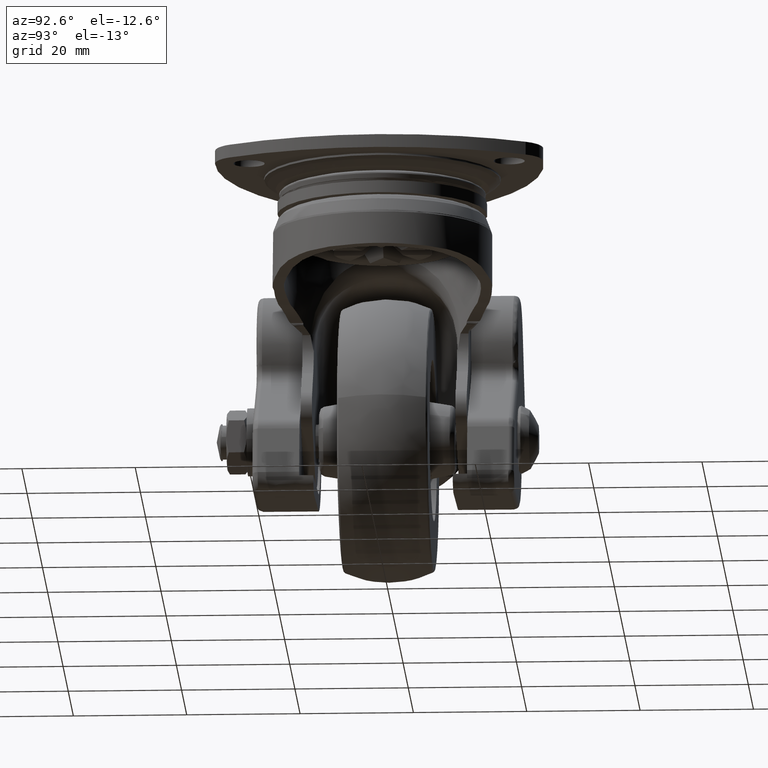
[diagram: clean part render]
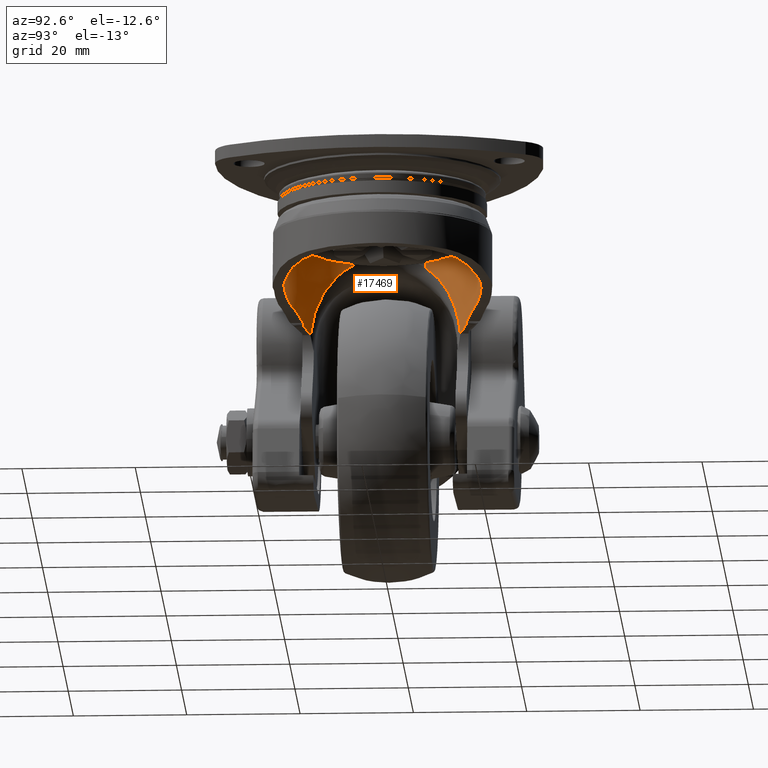
[diagram: same view with one face highlighted and labeled with its STEP entity id]
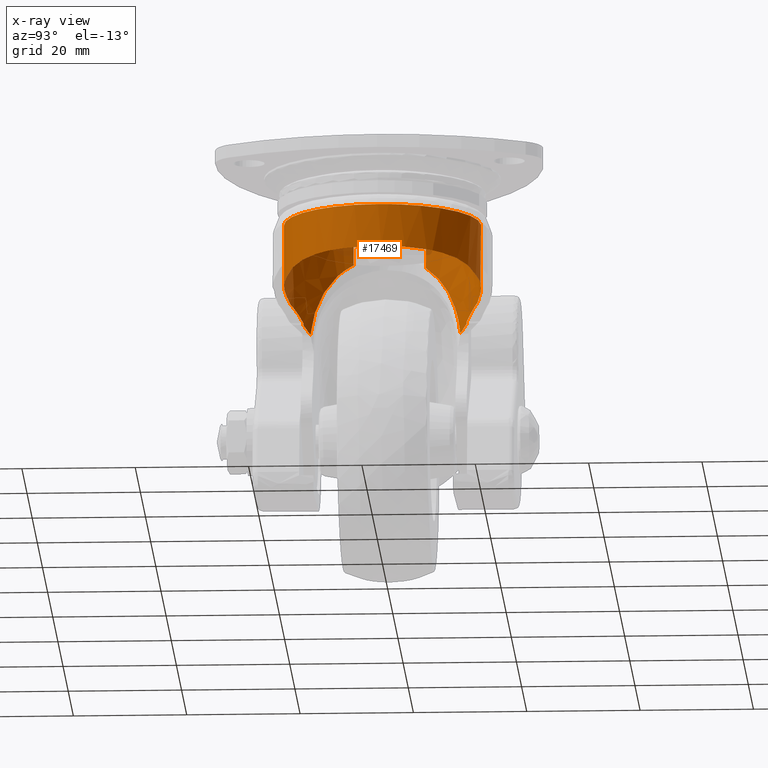
[diagram: x-ray of the same camera — body ghosted, the highlighted face saturated]
A machine part, auxiliary view. The second image highlights one B-rep face of the part: STEP entity #17469.
The next image is the same camera in x-ray: the body ghosted, the highlighted face saturated — about 1% of this face is hidden behind the body in this view.
In plain terms, the highlighted face is a freeform B-spline surface patch.
Its self-contained STEP definition (entity closure, byte-faithful):
#16979=CARTESIAN_POINT('',(-16.369466174454921,-5.829406467271696,-28.340582292806577));
#16980=CARTESIAN_POINT('',(-13.840908912767114,-12.929809020731485,-28.340582292806580));
#16981=CARTESIAN_POINT('',(-6.928847710513217,-15.935258767958830,-28.340582292806580));
#16982=CARTESIAN_POINT('',(9.006411057445614,-22.864106478472049,-28.340582292806584));
#16983=CARTESIAN_POINT('',(15.935258767958830,-6.928847710513217,-28.340582292806580));
#16984=CARTESIAN_POINT('',(22.864106478472049,9.006411057445614,-28.340582292806584));
#16985=CARTESIAN_POINT('',(6.928847710513217,15.935258767958830,-28.340582292806580));
#16986=CARTESIAN_POINT('',(-9.006411057445614,22.864106478472049,-28.340582292806584));
#16987=CARTESIAN_POINT('',(-15.935258767958830,6.928847710513217,-28.340582292806580));
#16988=CARTESIAN_POINT('',(-16.369466174454921,-5.829406467271696,-10.335087853159026));
#16989=CARTESIAN_POINT('',(-13.840908912767114,-12.929809020731485,-10.335087853159024));
#16990=CARTESIAN_POINT('',(-6.928847710513217,-15.935258767958830,-10.335087853159020));
#16991=CARTESIAN_POINT('',(9.006411057445614,-22.864106478472049,-10.335087853159024));
#16992=CARTESIAN_POINT('',(15.935258767958830,-6.928847710513217,-10.335087853159020));
#16993=CARTESIAN_POINT('',(22.864106478472049,9.006411057445614,-10.335087853159024));
#16994=CARTESIAN_POINT('',(6.928847710513217,15.935258767958830,-10.335087853159020));
#16995=CARTESIAN_POINT('',(-9.006411057445614,22.864106478472049,-10.335087853159026));
#16996=CARTESIAN_POINT('',(-15.935258767958830,6.928847710513217,-10.335087853159029));
#17004=(BOUNDED_SURFACE()B_SPLINE_SURFACE(2,1,((#16979,#16988),(#16980,#16989),(#16981,#16990),(#16982,#16991),(#16983,#16992),(#16984,#16993),(#16985,#16994),(#16986,#16995),(#16987,#16996)),.UNSPECIFIED.,.F.,.F.,.U.)B_SPLINE_SURFACE_WITH_KNOTS((3,2,2,2,3),(2,2),(0.0,14.970937031100160,43.761200552446610,72.551464073793056,101.341727595139500),(0.0,18.005494439647560),.UNSPECIFIED.)GEOMETRIC_REPRESENTATION_ITEM()RATIONAL_B_SPLINE_SURFACE(((0.853787705168325,0.853787705168325),(0.847695526217005,0.847695526217005),(1.0,1.0),(0.707106781186548,0.707106781186548),(1.0,1.0),(0.707106781186548,0.707106781186548),(1.0,1.0),(0.707106781186548,0.707106781186548),(1.0,1.0)))REPRESENTATION_ITEM('')SURFACE());
#17005=CARTESIAN_POINT('',(-11.261278477554541,-13.233480632405840,-27.912135072350949));
#17006=VERTEX_POINT('',#17005);
#17007=CARTESIAN_POINT('',(-16.369466341763310,-5.829406526846057,-14.219856318878399));
#17008=VERTEX_POINT('',#17007);
#17009=CARTESIAN_POINT('',(-11.261278477554541,-13.233480632405840,-27.912135072350949));
#17010=CARTESIAN_POINT('',(-11.315166881773930,-13.187623284404779,-27.430767966451189));
#17011=CARTESIAN_POINT('',(-11.384089228616000,-13.128436100265571,-26.955259438005580));
#17012=CARTESIAN_POINT('',(-11.548155476626871,-12.984353164154911,-26.014947296582051));
#17013=CARTESIAN_POINT('',(-11.643306839953370,-12.899448443883291,-25.550147056945161));
#17014=CARTESIAN_POINT('',(-11.856633268476880,-12.703645613073260,-24.630622749485411));
#17015=CARTESIAN_POINT('',(-11.974813752248741,-12.592744596585449,-24.175900417564549));
#17016=CARTESIAN_POINT('',(-12.167282773296630,-12.405910973466890,-23.501126004629999));
#17017=CARTESIAN_POINT('',(-12.233986782569390,-12.340199876890271,-23.277383985123471));
#17018=CARTESIAN_POINT('',(-12.372102891131400,-12.201722650877761,-22.832476613030980));
#17019=CARTESIAN_POINT('',(-12.443207287819320,-12.129264301083071,-22.612296909980252));
#17020=CARTESIAN_POINT('',(-12.662034981338721,-11.902037754609379,-21.958424105540320));
#17021=CARTESIAN_POINT('',(-12.815263941135621,-11.737443458026570,-21.531382221325309));
#17022=CARTESIAN_POINT('',(-13.133358086140809,-11.380398683374020,-20.694603886106631));
#17023=CARTESIAN_POINT('',(-13.298229001870739,-11.187951970507889,-20.284867946485829));
#17024=CARTESIAN_POINT('',(-13.636783974328811,-10.772710277273600,-19.482741538836450));
#17025=CARTESIAN_POINT('',(-13.810473754863860,-10.549924796451560,-19.090348952068450));
#17026=CARTESIAN_POINT('',(-14.031359390860111,-10.250263398494690,-18.611035540038170));
#17027=CARTESIAN_POINT('',(-14.075773246287939,-10.189201268469800,-18.515631254936380));
#17028=CARTESIAN_POINT('',(-14.164639504271600,-10.065296949634931,-18.326580040437129));
#17029=CARTESIAN_POINT('',(-14.298002375582779,-9.876768786829416,-18.045619626065349));
#17030=CARTESIAN_POINT('',(-14.431318858396740,-9.680107505026088,-17.772497319350620));
#17031=CARTESIAN_POINT('',(-14.697263142485911,-9.275560874414261,-17.236739291576640));
#17032=CARTESIAN_POINT('',(-14.873646378892509,-8.990928001311461,-16.893522888853742));
#17033=CARTESIAN_POINT('',(-15.221195229271819,-8.389121451111668,-16.235789361071198));
#17034=CARTESIAN_POINT('',(-15.392370558582400,-8.071962279296066,-15.921263351070669));
#17035=CARTESIAN_POINT('',(-15.725845223476281,-7.401313292812350,-15.322639685185690));
#17036=CARTESIAN_POINT('',(-15.888159696196240,-7.047850947517954,-15.038523478720460));
#17037=CARTESIAN_POINT('',(-16.082819236461329,-6.579863538604995,-14.704313421608241));
#17038=CARTESIAN_POINT('',(-16.121337185478559,-6.484952495598422,-14.638522365206670));
#17039=CARTESIAN_POINT('',(-16.197466999007169,-6.292390987068082,-14.509109389575510));
#17040=CARTESIAN_POINT('',(-16.234954354118031,-6.195049018426869,-14.445699658289289));
#17041=CARTESIAN_POINT('',(-16.304865597826169,-6.008468220011812,-14.327975453990030));
#17042=CARTESIAN_POINT('',(-16.337458639777239,-5.919287258712676,-14.273322277330960));
#17043=CARTESIAN_POINT('',(-16.369466341763310,-5.829406526846057,-14.219856318878399));
#17044=B_SPLINE_CURVE_WITH_KNOTS('',3,(#17009,#17010,#17011,#17012,#17013,#17014,#17015,#17016,#17017,#17018,#17019,#17020,#17021,#17022,#17023,#17024,#17025,#17026,#17027,#17028,#17029,#17030,#17031,#17032,#17033,#17034,#17035,#17036,#17037,#17038,#17039,#17040,#17041,#17042,#17043),.UNSPECIFIED.,.F.,.U.,(4,2,2,2,2,2,2,2,2,2,1,2,2,2,2,2,2,4),(0.0,0.031250000000000,0.062500000000000,0.093750000000001,0.109375000000001,0.125000000000001,0.156250000000001,0.187500000000002,0.218750000000003,0.226562500000003,0.234375000000003,0.250000000000003,0.281250000000002,0.312500000000002,0.343750000000002,0.351562500000002,0.359375000000002,0.366422879869190),.UNSPECIFIED.);
#17045=EDGE_CURVE('',#17006,#17008,#17044,.T.);
#17046=ORIENTED_EDGE('',*,*,#17045,.T.);
#17047=CARTESIAN_POINT('',(-16.369472677449998,-5.829388206247331,-10.774246254126041));
#17048=VERTEX_POINT('',#17047);
#17049=CARTESIAN_POINT('',(-16.369466341763310,-5.829406526846057,-14.219856318878399));
#17050=CARTESIAN_POINT('',(-16.369472677449998,-5.829388206247331,-10.774246254126041));
#17051=QUASI_UNIFORM_CURVE('',1,(#17049,#17050),.UNSPECIFIED.,.F.,.U.);
#17052=EDGE_CURVE('',#17008,#17048,#17051,.T.);
#17053=ORIENTED_EDGE('',*,*,#17052,.T.);
#17054=CARTESIAN_POINT('',(17.376461164382501,0.0,-10.774246254126041));
#17055=VERTEX_POINT('',#17054);
#17056=CARTESIAN_POINT('',(17.376461164382501,0.0,-10.774246254126041));
#17057=CARTESIAN_POINT('',(17.376461164382505,-17.376461164382505,-10.774246254126039));
#17058=CARTESIAN_POINT('',(0.0,-17.376461164382501,-10.774246254126041));
#17059=CARTESIAN_POINT('',(-12.257405523853175,-17.376461164382494,-10.774246254126037));
#17060=CARTESIAN_POINT('',(-16.369472677449995,-5.829388206247331,-10.774246254126037));
#17068=(BOUNDED_CURVE()B_SPLINE_CURVE(2,(#17056,#17057,#17058,#17059,#17060),.UNSPECIFIED.,.F.,.U.)B_SPLINE_CURVE_WITH_KNOTS((3,2,3),(0.0,0.250000000000000,0.443004179359974),.UNSPECIFIED.)CURVE()GEOMETRIC_REPRESENTATION_ITEM()RATIONAL_B_SPLINE_CURVE((1.0,0.707106781186547,1.0,0.773881538651234,0.896897541868536))REPRESENTATION_ITEM(''));
#17069=EDGE_CURVE('',#17055,#17048,#17068,.T.);
#17070=ORIENTED_EDGE('',*,*,#17069,.F.);
#17071=CARTESIAN_POINT('',(-15.935266595894920,6.928829707437133,-10.774246254126041));
#17072=VERTEX_POINT('',#17071);
#17073=CARTESIAN_POINT('',(-15.935266595894921,6.928829707437133,-10.774246254126037));
#17074=CARTESIAN_POINT('',(-11.392521184299902,17.376461164382498,-10.774246254126041));
#17075=CARTESIAN_POINT('',(0.0,17.376461164382501,-10.774246254126041));
#17076=CARTESIAN_POINT('',(17.376461164382505,17.376461164382505,-10.774246254126039));
#17077=CARTESIAN_POINT('',(17.376461164382501,0.0,-10.774246254126041));
#17085=(BOUNDED_CURVE()B_SPLINE_CURVE(2,(#17073,#17074,#17075,#17076,#17077),.UNSPECIFIED.,.F.,.U.)B_SPLINE_CURVE_WITH_KNOTS((3,2,3),(0.567705727613715,0.750000000000000,1.0),.UNSPECIFIED.)CURVE()GEOMETRIC_REPRESENTATION_ITEM()RATIONAL_B_SPLINE_CURVE((0.884320146926978,0.786428975158099,1.0,0.707106781186547,1.0))REPRESENTATION_ITEM(''));
#17086=EDGE_CURVE('',#17072,#17055,#17085,.T.);
#17087=ORIENTED_EDGE('',*,*,#17086,.F.);
#17088=CARTESIAN_POINT('',(-15.935262121990799,6.928849167732745,-14.958539373214119));
#17089=VERTEX_POINT('',#17088);
#17090=CARTESIAN_POINT('',(-15.935262121990799,6.928849167732745,-14.958539373214119));
#17091=CARTESIAN_POINT('',(-15.935266595894920,6.928829707437133,-10.774246254126041));
#17092=QUASI_UNIFORM_CURVE('',1,(#17090,#17091),.UNSPECIFIED.,.F.,.U.);
#17093=EDGE_CURVE('',#17089,#17072,#17092,.T.);
#17094=ORIENTED_EDGE('',*,*,#17093,.F.);
#17095=CARTESIAN_POINT('',(-11.261278477554541,13.233480632405840,-27.912135072350949));
#17096=VERTEX_POINT('',#17095);
#17097=CARTESIAN_POINT('',(-15.935262121990799,6.928849167732745,-14.958539373214119));
#17098=CARTESIAN_POINT('',(-15.816468095520801,7.202080175252930,-15.164457970473910));
#17099=CARTESIAN_POINT('',(-15.694079958409660,7.464346127374848,-15.379879726069820));
#17100=CARTESIAN_POINT('',(-15.401110411905860,8.055433759649620,-15.905288639493181));
#17101=CARTESIAN_POINT('',(-15.228357310531560,8.376285377244280,-16.222422912965659));
#17102=CARTESIAN_POINT('',(-14.964761218654830,8.833354548440791,-16.720991089080229));
#17103=CARTESIAN_POINT('',(-14.876148135684570,8.981665933813845,-16.891000565840329));
#17104=CARTESIAN_POINT('',(-14.742440238051049,9.198312927373420,-17.151667611338191));
#17105=CARTESIAN_POINT('',(-14.697739472577840,9.269558097978248,-17.239499218753711));
#17106=CARTESIAN_POINT('',(-14.608129855115640,9.410143314112363,-17.417039967791268));
#17107=CARTESIAN_POINT('',(-14.563223935504359,9.479475981475998,-17.506745341762439));
#17108=CARTESIAN_POINT('',(-14.339212279553330,9.820116241884351,-17.958117282872159));
#17109=CARTESIAN_POINT('',(-14.160939077804970,10.074565990475479,-18.329728232022109));
#17110=CARTESIAN_POINT('',(-13.809300011142501,10.551413040391180,-19.093012124056941));
#17111=CARTESIAN_POINT('',(-13.635927274290990,10.773797217960450,-19.484689435595129));
#17112=CARTESIAN_POINT('',(-13.297031987873360,11.189377454624120,-20.287777409373941));
#17113=CARTESIAN_POINT('',(-13.131503377844361,11.382567228292601,-20.699188964803639));
#17114=CARTESIAN_POINT('',(-12.931409591308130,11.607050045658790,-21.225921162444291));
#17115=CARTESIAN_POINT('',(-12.891732209288220,11.651094419126210,-21.331892320069219));
#17116=CARTESIAN_POINT('',(-12.813110643394751,11.737502213315910,-21.545092805506570));
#17117=CARTESIAN_POINT('',(-12.774131618293920,11.779902921398730,-21.652420617861360));
#17118=CARTESIAN_POINT('',(-12.658683679102200,11.904279956923350,-21.975429715990430));
#17119=CARTESIAN_POINT('',(-12.583702899127440,11.983438406112869,-22.192121829778671));
#17120=CARTESIAN_POINT('',(-12.365167460966100,12.210162495487150,-22.846243393970049));
#17121=CARTESIAN_POINT('',(-12.228011208648720,12.347007257318790,-23.287708958744229));
#17122=CARTESIAN_POINT('',(-11.973345745661190,12.594119484772071,-24.181560544943629));
#17123=CARTESIAN_POINT('',(-11.855831744922501,12.704386117143549,-24.633945602186120));
#17124=CARTESIAN_POINT('',(-11.643349504914630,12.899402799058810,-25.550090421144098));
#17125=CARTESIAN_POINT('',(-11.548375052940941,12.984157067524469,-26.013847701578651));
#17126=CARTESIAN_POINT('',(-11.384360313946360,13.128200499741061,-26.953543939190851));
#17127=CARTESIAN_POINT('',(-11.315311162701400,13.187500378130370,-27.429478265751420));
#17128=CARTESIAN_POINT('',(-11.261278477554541,13.233480632405840,-27.912135072350949));
#17129=B_SPLINE_CURVE_WITH_KNOTS('',3,(#17097,#17098,#17099,#17100,#17101,#17102,#17103,#17104,#17105,#17106,#17107,#17108,#17109,#17110,#17111,#17112,#17113,#17114,#17115,#17116,#17117,#17118,#17119,#17120,#17121,#17122,#17123,#17124,#17125,#17126,#17127,#17128),.UNSPECIFIED.,.F.,.U.,(4,2,2,2,2,2,2,2,2,2,2,2,2,2,2,4),(0.664218799372336,0.687500000000000,0.718750000000000,0.734375000000000,0.742187500000000,0.750000000000000,0.781250000000000,0.812500000000001,0.843750000000001,0.851562500000001,0.859375000000001,0.875000000000001,0.906250000000001,0.937500000000001,0.968750000000000,1.0),.UNSPECIFIED.);
#17130=EDGE_CURVE('',#17089,#17096,#17129,.T.);
#17131=ORIENTED_EDGE('',*,*,#17130,.T.);
#17132=CARTESIAN_POINT('',(-11.258029628833340,13.236244613696300,-27.901870511428250));
#17133=VERTEX_POINT('',#17132);
#17134=CARTESIAN_POINT('',(-11.261278477554550,13.233480632405820,-27.912135072350939));
#17135=CARTESIAN_POINT('',(-11.260197825998819,13.234400233109850,-27.908712324711090));
#17136=CARTESIAN_POINT('',(-11.259114818342651,13.235321610557360,-27.905290837272268));
#17137=CARTESIAN_POINT('',(-11.258029628833340,13.236244613696300,-27.901870511428250));
#17138=QUASI_UNIFORM_CURVE('',3,(#17134,#17135,#17136,#17137),.UNSPECIFIED.,.F.,.U.);
#17139=EDGE_CURVE('',#17096,#17133,#17138,.T.);
#17140=ORIENTED_EDGE('',*,*,#17139,.T.);
#17141=CARTESIAN_POINT('',(-10.080268191324979,14.153783797567000,-26.775918176435649));
#17142=VERTEX_POINT('',#17141);
#17143=CARTESIAN_POINT('',(-10.080268191324979,14.153783797567000,-26.775918176435649));
#17144=CARTESIAN_POINT('',(-10.464442254601821,13.880176573125500,-27.182096246221121));
#17145=CARTESIAN_POINT('',(-10.858735566387930,13.575862421981279,-27.556861119327550));
#17146=CARTESIAN_POINT('',(-11.258029628833331,13.236244613696289,-27.901870511428260));
#17147=QUASI_UNIFORM_CURVE('',3,(#17143,#17144,#17145,#17146),.UNSPECIFIED.,.F.,.U.);
#17148=EDGE_CURVE('',#17142,#17133,#17147,.T.);
#17149=ORIENTED_EDGE('',*,*,#17148,.F.);
#17150=CARTESIAN_POINT('',(-9.687374769915930,14.425538903780700,-26.073696181834450));
#17151=VERTEX_POINT('',#17150);
#17152=CARTESIAN_POINT('',(-9.687374769915930,14.425538903780700,-26.073696181834450));
#17153=CARTESIAN_POINT('',(-9.682358532801333,14.428907524663110,-26.111516152841620));
#17154=CARTESIAN_POINT('',(-9.680558141822388,14.430114339706369,-26.149619650342260));
#17155=CARTESIAN_POINT('',(-9.682785216820037,14.428619956234639,-26.207209021927252));
#17156=CARTESIAN_POINT('',(-9.684371875201775,14.427555312603390,-26.226594401765681));
#17157=CARTESIAN_POINT('',(-9.689160667705801,14.424339723911540,-26.264768476901530));
#17158=CARTESIAN_POINT('',(-9.692351581865653,14.422196300091100,-26.283581623902130));
#17159=CARTESIAN_POINT('',(-9.704214635043254,14.414219082022690,-26.339232435803769));
#17160=CARTESIAN_POINT('',(-9.715194819465346,14.406827315557880,-26.375368944526461));
#17161=CARTESIAN_POINT('',(-9.742977322798847,14.388053258446700,-26.445241985642131));
#17162=CARTESIAN_POINT('',(-9.759409415674259,14.376920456684211,-26.478098619171622));
#17163=CARTESIAN_POINT('',(-9.796795909470614,14.351470442737080,-26.540080713258639));
#17164=CARTESIAN_POINT('',(-9.817951961741382,14.337014422775260,-26.569407780436300));
#17165=CARTESIAN_POINT('',(-9.863414774831133,14.305775486200330,-26.623096784286609));
#17166=CARTESIAN_POINT('',(-9.887713328647513,14.288999517061839,-26.647547271072501));
#17167=CARTESIAN_POINT('',(-9.939120442023171,14.253289687193771,-26.692096693893379));
#17168=CARTESIAN_POINT('',(-9.966391768284790,14.234240490150320,-26.712267022082770));
#17169=CARTESIAN_POINT('',(-10.022225224008920,14.194983929882021,-26.747578222480069));
#17170=CARTESIAN_POINT('',(-10.050902488945310,14.174697933309091,-26.762849789234799));
#17171=CARTESIAN_POINT('',(-10.080268191324979,14.153783797567000,-26.775918176435649));
#17172=B_SPLINE_CURVE_WITH_KNOTS('',3,(#17152,#17153,#17154,#17155,#17156,#17157,#17158,#17159,#17160,#17161,#17162,#17163,#17164,#17165,#17166,#17167,#17168,#17169,#17170,#17171),.UNSPECIFIED.,.F.,.U.,(4,2,2,2,2,2,2,2,2,4),(0.0,0.125000000000010,0.187500000000009,0.250000000000008,0.375000000000007,0.500000000000006,0.625000000000004,0.750000000000003,0.875000000000001,1.0),.UNSPECIFIED.);
#17173=EDGE_CURVE('',#17151,#17142,#17172,.T.);
#17174=ORIENTED_EDGE('',*,*,#17173,.F.);
#17175=CARTESIAN_POINT('',(-5.377653036368610,16.523384956410400,-23.646814314706798));
#17176=VERTEX_POINT('',#17175);
#17177=CARTESIAN_POINT('',(-9.687374769915916,14.425538903780680,-26.073696181834450));
#17178=CARTESIAN_POINT('',(-9.550839856103611,14.517228017657130,-25.916368322189399));
#17179=CARTESIAN_POINT('',(-9.408104410333829,14.610270389779799,-25.765373295529830));
#17180=CARTESIAN_POINT('',(-9.184521735380793,14.751058260505999,-25.548065060022338));
#17181=CARTESIAN_POINT('',(-9.108411554308521,14.798193067163810,-25.477162976458800));
#17182=CARTESIAN_POINT('',(-8.952963232337337,14.892754226674530,-25.338412410596248));
#17183=CARTESIAN_POINT('',(-8.873531825910984,14.940235236042620,-25.270487989055979));
#17184=CARTESIAN_POINT('',(-8.469122588388180,15.177485272711490,-24.939366237456522));
#17185=CARTESIAN_POINT('',(-8.127014119586807,15.364122674451799,-24.704945517803228));
#17186=CARTESIAN_POINT('',(-7.404179534552633,15.725226531776240,-24.294504261516739));
#17187=CARTESIAN_POINT('',(-7.023478162020003,15.899738891051740,-24.118479935656460));
#17188=CARTESIAN_POINT('',(-6.520329416967926,16.107096359142002,-23.937761285434370));
#17189=CARTESIAN_POINT('',(-6.418230416788564,16.148059088045471,-23.903586440945979));
#17190=CARTESIAN_POINT('',(-6.213349834499151,16.227993647648720,-23.839976569967739));
#17191=CARTESIAN_POINT('',(-6.110314293130963,16.267072857424981,-23.810444327171631));
#17192=CARTESIAN_POINT('',(-5.799412642331546,16.381605710385571,-23.728641936804848));
#17193=CARTESIAN_POINT('',(-5.589753682269478,16.454355292804951,-23.683152217134278));
#17194=CARTESIAN_POINT('',(-5.377653036368610,16.523384956410400,-23.646814314706798));
#17195=B_SPLINE_CURVE_WITH_KNOTS('',3,(#17177,#17178,#17179,#17180,#17181,#17182,#17183,#17184,#17185,#17186,#17187,#17188,#17189,#17190,#17191,#17192,#17193,#17194),.UNSPECIFIED.,.F.,.U.,(4,2,2,2,2,2,2,2,4),(0.0,0.125000000000000,0.187500000000000,0.250000000000000,0.500000000000000,0.750000000000000,0.812500000000000,0.875000000000000,1.0),.UNSPECIFIED.);
#17196=EDGE_CURVE('',#17151,#17176,#17195,.T.);
#17197=ORIENTED_EDGE('',*,*,#17196,.T.);
#17198=CARTESIAN_POINT('',(1.037606072873244,17.345454050984952,-21.655801114654750));
#17199=VERTEX_POINT('',#17198);
#17200=CARTESIAN_POINT('',(-5.377653036368597,16.523384956410379,-23.646814314706798));
#17201=CARTESIAN_POINT('',(-5.138251271321047,16.601299961847602,-23.512672893353820));
#17202=CARTESIAN_POINT('',(-4.893483031300947,16.675210184365930,-23.383550524081699));
#17203=CARTESIAN_POINT('',(-4.393103274598962,16.813966054715330,-23.136104147967579));
#17204=CARTESIAN_POINT('',(-4.139863438625380,16.878154172158919,-23.018950352004950));
#17205=CARTESIAN_POINT('',(-3.370899124772842,17.054473357370359,-22.687166788765339));
#17206=CARTESIAN_POINT('',(-2.845958020571318,17.150404081166279,-22.492152720950489));
#17207=CARTESIAN_POINT('',(-1.770338181679192,17.294558101455738,-22.155774863797131));
#17208=CARTESIAN_POINT('',(-1.219651403330850,17.342810316270690,-22.014393511767739));
#17209=CARTESIAN_POINT('',(-0.090469469988462,17.385408666085240,-21.788737074291902));
#17210=CARTESIAN_POINT('',(0.473784838181176,17.379181870847859,-21.707324711967559));
#17211=CARTESIAN_POINT('',(1.037606072873244,17.345454050984952,-21.655801114654750));
#17212=B_SPLINE_CURVE_WITH_KNOTS('',3,(#17200,#17201,#17202,#17203,#17204,#17205,#17206,#17207,#17208,#17209,#17210,#17211),.UNSPECIFIED.,.F.,.U.,(4,2,2,2,2,4),(0.0,0.125000000000000,0.250000000000001,0.500000000000000,0.750000000000000,1.0),.UNSPECIFIED.);
#17213=EDGE_CURVE('',#17176,#17199,#17212,.T.);
#17214=ORIENTED_EDGE('',*,*,#17213,.T.);
#17215=CARTESIAN_POINT('',(2.197175418270140,17.236989957026800,-21.462834003046002));
#17216=VERTEX_POINT('',#17215);
#17217=CARTESIAN_POINT('',(2.197175418270136,17.236989957026800,-21.462834003045991));
#17218=CARTESIAN_POINT('',(1.817990655366420,17.285324117579869,-21.555094138165330));
#17219=CARTESIAN_POINT('',(1.431594896124578,17.321885616601609,-21.619797533424649));
#17220=CARTESIAN_POINT('',(1.037606072873240,17.345454050984941,-21.655801114654739));
#17221=QUASI_UNIFORM_CURVE('',3,(#17217,#17218,#17219,#17220),.UNSPECIFIED.,.F.,.U.);
#17222=EDGE_CURVE('',#17216,#17199,#17221,.T.);
#17223=ORIENTED_EDGE('',*,*,#17222,.F.);
#17224=CARTESIAN_POINT('',(4.854016594851840,16.684721319045050,-21.001757221530600));
#17225=VERTEX_POINT('',#17224);
#17226=CARTESIAN_POINT('',(2.197175418270140,17.236989957026800,-21.462834003046002));
#17227=CARTESIAN_POINT('',(2.450767541523869,17.204664410119520,-21.401132410667120));
#17228=CARTESIAN_POINT('',(2.705555757558828,17.166502775895921,-21.344347344816072));
#17229=CARTESIAN_POINT('',(3.089514287710295,17.100091015381469,-21.266564757358399));
#17230=CARTESIAN_POINT('',(3.217796557747296,17.076424859857848,-21.241870046504989));
#17231=CARTESIAN_POINT('',(3.474950966523162,17.025956612215069,-21.194953447582119));
#17232=CARTESIAN_POINT('',(3.604065454982215,16.999099587301028,-21.172693565277040));
#17233=CARTESIAN_POINT('',(4.110287878016990,16.887753203206181,-21.090461891735760));
#17234=CARTESIAN_POINT('',(4.484037373318874,16.792365052459481,-21.040738318836318));
#17235=CARTESIAN_POINT('',(4.854016594851840,16.684721319045050,-21.001757221530600));
#17236=B_SPLINE_CURVE_WITH_KNOTS('',3,(#17226,#17227,#17228,#17229,#17230,#17231,#17232,#17233,#17234,#17235),.UNSPECIFIED.,.F.,.U.,(4,2,2,2,4),(0.0,0.015625000000000,0.023437500000000,0.031250000000001,0.054162740855273),.UNSPECIFIED.);
#17237=EDGE_CURVE('',#17216,#17225,#17236,.T.);
#17238=ORIENTED_EDGE('',*,*,#17237,.T.);
#17239=CARTESIAN_POINT('',(13.275270904797379,11.211983990424439,-18.807981050942150));
#17240=VERTEX_POINT('',#17239);
#17241=CARTESIAN_POINT('',(4.854016594851840,16.684721319045050,-21.001757221530600));
#17242=CARTESIAN_POINT('',(5.697990303188613,16.439187158558290,-20.682634008301498));
#17243=CARTESIAN_POINT('',(6.534232001207675,16.126848494597191,-20.398377886188300));
#17244=CARTESIAN_POINT('',(7.565885587721200,15.644507282856621,-20.082963353225850));
#17245=CARTESIAN_POINT('',(7.771527376771122,15.543419791622050,-20.021877734590479));
#17246=CARTESIAN_POINT('',(8.078859764125502,15.384624322181750,-19.933181327448530));
#17247=CARTESIAN_POINT('',(8.181011340170112,15.330548126393261,-19.904135762715850));
#17248=CARTESIAN_POINT('',(8.383855263521857,15.220565663962599,-19.847301535672109));
#17249=CARTESIAN_POINT('',(8.484671955819520,15.164595685814650,-19.819476809557099));
#17250=CARTESIAN_POINT('',(8.985725279650669,14.879873117282100,-19.683227866083371));
#17251=CARTESIAN_POINT('',(9.376883581985457,14.636521619734980,-19.583417267809910));
#17252=CARTESIAN_POINT('',(10.520870336993459,13.860092182504109,-19.308467503539219));
#17253=CARTESIAN_POINT('',(11.244389858829930,13.280900080253931,-19.157732076471760));
#17254=CARTESIAN_POINT('',(12.095943604362409,12.477348867544830,-19.001318401785120));
#17255=CARTESIAN_POINT('',(12.263597908920490,12.312639896033209,-18.971642362047550));
#17256=CARTESIAN_POINT('',(12.510975185224421,12.059463674108100,-18.929392380337369));
#17257=CARTESIAN_POINT('',(12.592844673053181,11.973950681140060,-18.915671016389052));
#17258=CARTESIAN_POINT('',(12.754687560998180,11.801405555045100,-18.889041989103870));
#17259=CARTESIAN_POINT('',(12.834619457617389,11.714422731313970,-18.876140382325211));
#17260=CARTESIAN_POINT('',(13.036511711394899,11.490185079785800,-18.844152983458368));
#17261=CARTESIAN_POINT('',(13.157074713218490,11.351929468280680,-18.825624961839580));
#17262=CARTESIAN_POINT('',(13.275270904797379,11.211983990424439,-18.807981050942150));
#17263=B_SPLINE_CURVE_WITH_KNOTS('',3,(#17241,#17242,#17243,#17244,#17245,#17246,#17247,#17248,#17249,#17250,#17251,#17252,#17253,#17254,#17255,#17256,#17257,#17258,#17259,#17260,#17261,#17262),.UNSPECIFIED.,.F.,.U.,(4,2,2,2,2,2,2,2,2,2,4),(0.0,0.062500000000000,0.078125000000000,0.085937500000000,0.093749999999999,0.124999999999999,0.187499999999999,0.203124999999999,0.210937499999999,0.218749999999999,0.230916039312198),.UNSPECIFIED.);
#17264=EDGE_CURVE('',#17225,#17240,#17263,.T.);
#17265=ORIENTED_EDGE('',*,*,#17264,.T.);
#17266=CARTESIAN_POINT('',(14.562603211558701,9.480083876211131,-18.615818257571050));
#17267=VERTEX_POINT('',#17266);
#17268=CARTESIAN_POINT('',(13.275270904797379,11.211983990424439,-18.807981050942089));
#17269=CARTESIAN_POINT('',(13.972811107487173,10.386078854847828,-18.703857761925338));
#17270=CARTESIAN_POINT('',(14.562603211558701,9.480083876211131,-18.615818257571050));
#17278=(BOUNDED_CURVE()B_SPLINE_CURVE(2,(#17268,#17269,#17270),.UNSPECIFIED.,.F.,.U.)CURVE()GEOMETRIC_REPRESENTATION_ITEM()QUASI_UNIFORM_CURVE()RATIONAL_B_SPLINE_CURVE((1.0,0.998070321036149,1.0))REPRESENTATION_ITEM(''));
#17279=EDGE_CURVE('',#17240,#17267,#17278,.T.);
#17280=ORIENTED_EDGE('',*,*,#17279,.T.);
#17281=CARTESIAN_POINT('',(15.160868002240100,8.490552633129772,-18.544308104256949));
#17282=VERTEX_POINT('',#17281);
#17283=CARTESIAN_POINT('',(14.562603211558701,9.480083876211131,-18.615818257571050));
#17284=CARTESIAN_POINT('',(14.772187374748309,9.158136196442388,-18.584533134772279));
#17285=CARTESIAN_POINT('',(14.971725562330310,8.828292045267295,-18.561326321324660));
#17286=CARTESIAN_POINT('',(15.160868002240100,8.490552633129772,-18.544308104256949));
#17287=B_SPLINE_CURVE_WITH_KNOTS('',3,(#17283,#17284,#17285,#17286),.UNSPECIFIED.,.F.,.U.,(4,4),(0.0,0.057820794563528),.UNSPECIFIED.);
#17288=EDGE_CURVE('',#17267,#17282,#17287,.T.);
#17289=ORIENTED_EDGE('',*,*,#17288,.T.);
#17290=CARTESIAN_POINT('',(15.160868000000001,-8.490552637129500,-18.544307999999901));
#17291=VERTEX_POINT('',#17290);
#17292=CARTESIAN_POINT('',(15.160868002240100,8.490552633129772,-18.544308104256949));
#17293=CARTESIAN_POINT('',(19.915838761671630,-2.627192E-009,-18.116393876625981));
#17294=CARTESIAN_POINT('',(15.160868000000001,-8.490552637129500,-18.544307999999901));
#17302=(BOUNDED_CURVE()B_SPLINE_CURVE(2,(#17292,#17293,#17294),.UNSPECIFIED.,.F.,.U.)CURVE()GEOMETRIC_REPRESENTATION_ITEM()QUASI_UNIFORM_CURVE()RATIONAL_B_SPLINE_CURVE((1.0,0.872494569388853,1.0))REPRESENTATION_ITEM(''));
#17303=EDGE_CURVE('',#17282,#17291,#17302,.T.);
#17304=ORIENTED_EDGE('',*,*,#17303,.T.);
#17305=CARTESIAN_POINT('',(14.562603211558701,-9.480083876210909,-18.615818257571050));
#17306=VERTEX_POINT('',#17305);
#17307=CARTESIAN_POINT('',(15.160868000000001,-8.490552637129500,-18.544307999999901));
#17308=CARTESIAN_POINT('',(14.971638197718599,-8.828448093148500,-18.561334285818610));
#17309=CARTESIAN_POINT('',(14.772088745825281,-9.158287702894215,-18.584547857344450));
#17310=CARTESIAN_POINT('',(14.562603211558690,-9.480083876210895,-18.615818257571060));
#17311=B_SPLINE_CURVE_WITH_KNOTS('',3,(#17307,#17308,#17309,#17310),.UNSPECIFIED.,.F.,.U.,(4,4),(0.942261013522867,1.0),.UNSPECIFIED.);
#17312=EDGE_CURVE('',#17291,#17306,#17311,.T.);
#17313=ORIENTED_EDGE('',*,*,#17312,.T.);
#17314=CARTESIAN_POINT('',(13.275270904797379,-11.211983990424219,-18.807981050942150));
#17315=VERTEX_POINT('',#17314);
#17316=CARTESIAN_POINT('',(14.562603211558690,-9.480083876210925,-18.615818257570989));
#17317=CARTESIAN_POINT('',(13.972811107487178,-10.386078854847828,-18.703857761925335));
#17318=CARTESIAN_POINT('',(13.275270904797379,-11.211983990424219,-18.807981050942150));
#17326=(BOUNDED_CURVE()B_SPLINE_CURVE(2,(#17316,#17317,#17318),.UNSPECIFIED.,.F.,.U.)CURVE()GEOMETRIC_REPRESENTATION_ITEM()QUASI_UNIFORM_CURVE()RATIONAL_B_SPLINE_CURVE((1.0,0.998070321036161,1.0))REPRESENTATION_ITEM(''));
#17327=EDGE_CURVE('',#17306,#17315,#17326,.T.);
#17328=ORIENTED_EDGE('',*,*,#17327,.T.);
#17329=CARTESIAN_POINT('',(4.854016587082790,-16.684721321305300,-21.001757141566252));
#17330=VERTEX_POINT('',#17329);
#17331=CARTESIAN_POINT('',(13.275270904797379,-11.211983990424219,-18.807981050942150));
#17332=CARTESIAN_POINT('',(12.859168885911879,-11.704742237350430,-18.870077704541391));
#17333=CARTESIAN_POINT('',(12.417000769387780,-12.172621206624960,-18.942650206404650));
#17334=CARTESIAN_POINT('',(11.610175161034350,-12.936835253443279,-19.090356185128400));
#17335=CARTESIAN_POINT('',(11.257601033460441,-13.244894258436560,-19.159322998206111));
#17336=CARTESIAN_POINT('',(10.799785421720930,-13.613171378111449,-19.255681487416439));
#17337=CARTESIAN_POINT('',(10.707500328565301,-13.685874576486340,-19.275434220571711));
#17338=CARTESIAN_POINT('',(10.522100682760479,-13.828925305530319,-19.315797844805662));
#17339=CARTESIAN_POINT('',(10.242491511047721,-14.040181649761889,-19.377686191012209));
#17340=CARTESIAN_POINT('',(9.958445426363280,-14.241596363325700,-19.443695946919821));
#17341=CARTESIAN_POINT('',(9.002125227950483,-14.891537287046850,-19.673311096742822));
#17342=CARTESIAN_POINT('',(8.206832158824621,-15.343203770010780,-19.887587727100922));
#17343=CARTESIAN_POINT('',(6.973307346005515,-15.922320188774140,-20.263860154624030));
#17344=CARTESIAN_POINT('',(6.555335913924371,-16.098897330512830,-20.398442465422431));
#17345=CARTESIAN_POINT('',(6.024656382578770,-16.299004665224960,-20.579209977546871));
#17346=CARTESIAN_POINT('',(5.918235925803297,-16.337943924795791,-20.615948917437429));
#17347=CARTESIAN_POINT('',(5.705535993486797,-16.413434458479369,-20.690366843426219));
#17348=CARTESIAN_POINT('',(5.386389918021288,-16.523204512911519,-20.803508212809920));
#17349=CARTESIAN_POINT('',(5.067005205963323,-16.622756233958931,-20.921222042899661));
#17350=CARTESIAN_POINT('',(4.854016587082790,-16.684721321305300,-21.001757141566252));
#17351=B_SPLINE_CURVE_WITH_KNOTS('',3,(#17331,#17332,#17333,#17334,#17335,#17336,#17337,#17338,#17339,#17340,#17341,#17342,#17343,#17344,#17345,#17346,#17347,#17348,#17349,#17350),.UNSPECIFIED.,.F.,.U.,(4,2,2,2,1,2,2,2,2,1,4),(0.769389746133741,0.812500000000002,0.843750000000002,0.851562500000002,0.859375000000002,0.875000000000002,0.937500000000001,0.968750000000000,0.976562500000000,0.984375000000000,1.0),.UNSPECIFIED.);
#17352=EDGE_CURVE('',#17315,#17330,#17351,.T.);
#17353=ORIENTED_EDGE('',*,*,#17352,.T.);
#17354=CARTESIAN_POINT('',(2.197175315946265,-17.236989970069899,-21.462833575666600));
#17355=VERTEX_POINT('',#17354);
#17356=CARTESIAN_POINT('',(4.854016587082790,-16.684721321305300,-21.001757141566252));
#17357=CARTESIAN_POINT('',(4.486090998478259,-16.791767181821520,-21.040522676677259));
#17358=CARTESIAN_POINT('',(4.114938917494382,-16.886547253414928,-21.089858386251191));
#17359=CARTESIAN_POINT('',(3.485385240886732,-17.025325782693379,-21.191870148104620));
#17360=CARTESIAN_POINT('',(3.228676247046929,-17.075879088973110,-21.238496641513720));
#17361=CARTESIAN_POINT('',(2.841410740093202,-17.143071805405871,-21.316766413609049));
#17362=CARTESIAN_POINT('',(2.711872861139772,-17.164035562890611,-21.344269040068859));
#17363=CARTESIAN_POINT('',(2.453984420413403,-17.202800602723709,-21.401680947766490));
#17364=CARTESIAN_POINT('',(2.325399966700137,-17.220645108109370,-21.431635174627829));
#17365=CARTESIAN_POINT('',(2.197175315946265,-17.236989970069899,-21.462833575666600));
#17366=B_SPLINE_CURVE_WITH_KNOTS('',3,(#17356,#17357,#17358,#17359,#17360,#17361,#17362,#17363,#17364,#17365),.UNSPECIFIED.,.F.,.U.,(4,2,2,2,4),(0.945834822156837,0.968750000000000,0.984375000000000,0.992187500000000,1.0),.UNSPECIFIED.);
#17367=EDGE_CURVE('',#17330,#17355,#17366,.T.);
#17368=ORIENTED_EDGE('',*,*,#17367,.T.);
#17369=CARTESIAN_POINT('',(1.037606072873244,-17.345454050984952,-21.655801114654750));
#17370=VERTEX_POINT('',#17369);
#17371=CARTESIAN_POINT('',(1.037606072873240,-17.345454050984941,-21.655801114654739));
#17372=CARTESIAN_POINT('',(1.429008783193550,-17.322040318027959,-21.620033858217351));
#17373=CARTESIAN_POINT('',(1.815510546135743,-17.285640252714369,-21.555697575785260));
#17374=CARTESIAN_POINT('',(2.197175315946265,-17.236989970069899,-21.462833575666600));
#17375=QUASI_UNIFORM_CURVE('',3,(#17371,#17372,#17373,#17374),.UNSPECIFIED.,.F.,.U.);
#17376=EDGE_CURVE('',#17370,#17355,#17375,.T.);
#17377=ORIENTED_EDGE('',*,*,#17376,.F.);
#17378=CARTESIAN_POINT('',(-5.377653036368811,-16.523384956410599,-23.646814314706599));
#17379=VERTEX_POINT('',#17378);
#17380=CARTESIAN_POINT('',(1.037606072873244,-17.345454050984952,-21.655801114654750));
#17381=CARTESIAN_POINT('',(0.474473796533309,-17.379140657618489,-21.707261753080839));
#17382=CARTESIAN_POINT('',(-0.087621126721153,-17.385304617228702,-21.788409005692159));
#17383=CARTESIAN_POINT('',(-0.788794862498198,-17.359115717133729,-21.928232315972231));
#17384=CARTESIAN_POINT('',(-0.928957112762096,-17.352179699044171,-21.958121547494219));
#17385=CARTESIAN_POINT('',(-1.209131820007872,-17.334909918056010,-22.021802467795670));
#17386=CARTESIAN_POINT('',(-1.348459201877886,-17.324616630898831,-22.055440613818661));
#17387=CARTESIAN_POINT('',(-1.763499936846080,-17.288973210918179,-22.161481218109319));
#17388=CARTESIAN_POINT('',(-2.036589046215358,-17.258844432941199,-22.239076558039240));
#17389=CARTESIAN_POINT('',(-2.845476882772368,-17.150529960681929,-22.491928166815761));
#17390=CARTESIAN_POINT('',(-3.370926187986540,-17.054459799642469,-22.687187942937179));
#17391=CARTESIAN_POINT('',(-4.139503646759685,-16.878240344065841,-23.018790377868310));
#17392=CARTESIAN_POINT('',(-4.392422132828674,-16.814135988112650,-23.135792676465648));
#17393=CARTESIAN_POINT('',(-4.766962880055609,-16.710303772016498,-23.320971545310531));
#17394=CARTESIAN_POINT('',(-4.891099867155894,-16.674380009825988,-23.384367903772151));
#17395=CARTESIAN_POINT('',(-5.136361708138561,-16.600469723045329,-23.513630842268089));
#17396=CARTESIAN_POINT('',(-5.257656103943990,-16.562438810672710,-23.579577721567059));
#17397=CARTESIAN_POINT('',(-5.377653036368811,-16.523384956410599,-23.646814314706599));
#17398=B_SPLINE_CURVE_WITH_KNOTS('',3,(#17380,#17381,#17382,#17383,#17384,#17385,#17386,#17387,#17388,#17389,#17390,#17391,#17392,#17393,#17394,#17395,#17396,#17397),.UNSPECIFIED.,.F.,.U.,(4,2,2,2,2,2,2,2,4),(0.0,0.250000000000000,0.312500000000000,0.375000000000000,0.500000000000000,0.750000000000000,0.875000000000000,0.937500000000000,1.0),.UNSPECIFIED.);
#17399=EDGE_CURVE('',#17370,#17379,#17398,.T.);
#17400=ORIENTED_EDGE('',*,*,#17399,.T.);
#17401=CARTESIAN_POINT('',(-9.687374769915930,-14.425538903780700,-26.073696181834450));
#17402=VERTEX_POINT('',#17401);
#17403=CARTESIAN_POINT('',(-5.377653036368811,-16.523384956410599,-23.646814314706599));
#17404=CARTESIAN_POINT('',(-5.805106461244996,-16.384267197374960,-23.720048079695299));
#17405=CARTESIAN_POINT('',(-6.218587386874139,-16.231397264175289,-23.829501552362679));
#17406=CARTESIAN_POINT('',(-6.719289780054106,-16.025113967655649,-24.009193641856029));
#17407=CARTESIAN_POINT('',(-6.818618101675297,-15.983096837295340,-24.047293816973760));
#17408=CARTESIAN_POINT('',(-7.015665202019060,-15.897590355146059,-24.127829041775989));
#17409=CARTESIAN_POINT('',(-7.113127701046882,-15.854208591141980,-24.170168052775601));
#17410=CARTESIAN_POINT('',(-7.400882970133595,-15.723001826682760,-24.302590116847270));
#17411=CARTESIAN_POINT('',(-7.587194821197519,-15.633837444228019,-24.398323420082750));
#17412=CARTESIAN_POINT('',(-8.130537539351526,-15.362283211773130,-24.707150308693031));
#17413=CARTESIAN_POINT('',(-8.472086474867728,-15.175788171571019,-24.941656437165101));
#17414=CARTESIAN_POINT('',(-8.874599138724912,-14.939598548941410,-25.271396408552441));
#17415=CARTESIAN_POINT('',(-8.954010298307365,-14.892125561675041,-25.339317604411221));
#17416=CARTESIAN_POINT('',(-9.109686477290367,-14.797409112826569,-25.478330792814852));
#17417=CARTESIAN_POINT('',(-9.185818542469200,-14.750250357765710,-25.549291727026478));
#17418=CARTESIAN_POINT('',(-9.409225002911152,-14.609547176434470,-25.766530784399858));
#17419=CARTESIAN_POINT('',(-9.551521080362518,-14.516770546033889,-25.917153290309258));
#17420=CARTESIAN_POINT('',(-9.687374769915916,-14.425538903780680,-26.073696181834450));
#17421=B_SPLINE_CURVE_WITH_KNOTS('',3,(#17403,#17404,#17405,#17406,#17407,#17408,#17409,#17410,#17411,#17412,#17413,#17414,#17415,#17416,#17417,#17418,#17419,#17420),.UNSPECIFIED.,.F.,.U.,(4,2,2,2,2,2,2,2,4),(0.0,0.250000000000000,0.312500000000000,0.375000000000001,0.500000000000001,0.750000000000000,0.812500000000000,0.875000000000000,1.0),.UNSPECIFIED.);
#17422=EDGE_CURVE('',#17379,#17402,#17421,.T.);
#17423=ORIENTED_EDGE('',*,*,#17422,.T.);
#17424=CARTESIAN_POINT('',(-10.080268191322840,-14.153783797568019,-26.775918176426948));
#17425=VERTEX_POINT('',#17424);
#17426=CARTESIAN_POINT('',(-10.080268191322860,-14.153783797567980,-26.775918176426881));
#17427=CARTESIAN_POINT('',(-10.020974704433780,-14.196012381697070,-26.749531263058039));
#17428=CARTESIAN_POINT('',(-9.965233862029166,-14.235148447127500,-26.714673041005561));
#17429=CARTESIAN_POINT('',(-9.887959604565296,-14.288829242300730,-26.647787235973610));
#17430=CARTESIAN_POINT('',(-9.863240693170312,-14.305895338918020,-26.622903854753730));
#17431=CARTESIAN_POINT('',(-9.817923195954386,-14.337033951896320,-26.569361101890841));
#17432=CARTESIAN_POINT('',(-9.797098368863439,-14.351264132356020,-26.540537908699878));
#17433=CARTESIAN_POINT('',(-9.759541379331987,-14.376831038547460,-26.478361133297138));
#17434=CARTESIAN_POINT('',(-9.742830752845382,-14.388152266555220,-26.444862663423240));
#17435=CARTESIAN_POINT('',(-9.715394220897597,-14.406692606449170,-26.375881117417858));
#17436=CARTESIAN_POINT('',(-9.704437831795246,-14.414068869122669,-26.340075622964950));
#17437=CARTESIAN_POINT('',(-9.692472943128010,-14.422114752818080,-26.284249912488178));
#17438=CARTESIAN_POINT('',(-9.689220485777197,-14.424299547013259,-26.265168034421048));
#17439=CARTESIAN_POINT('',(-9.684394843285231,-14.427539899903991,-26.226853460664181));
#17440=CARTESIAN_POINT('',(-9.682819776169968,-14.428596765042110,-26.207699973304159));
#17441=CARTESIAN_POINT('',(-9.680552043421601,-14.430118434947371,-26.150250649405329));
#17442=CARTESIAN_POINT('',(-9.682298878793388,-14.428947584919950,-26.111965867062558));
#17443=CARTESIAN_POINT('',(-9.687374769915930,-14.425538903780700,-26.073696181834450));
#17444=B_SPLINE_CURVE_WITH_KNOTS('',3,(#17426,#17427,#17428,#17429,#17430,#17431,#17432,#17433,#17434,#17435,#17436,#17437,#17438,#17439,#17440,#17441,#17442,#17443),.UNSPECIFIED.,.F.,.U.,(4,2,2,2,2,2,2,2,4),(0.0,0.250000000000007,0.375000000000004,0.500000000000001,0.624999999999998,0.749999999999995,0.812499999999993,0.874999999999992,1.0),.UNSPECIFIED.);
#17445=EDGE_CURVE('',#17425,#17402,#17444,.T.);
#17446=ORIENTED_EDGE('',*,*,#17445,.F.);
#17447=CARTESIAN_POINT('',(-11.258029628833340,-13.236244613696300,-27.901870511428250));
#17448=VERTEX_POINT('',#17447);
#17449=CARTESIAN_POINT('',(-11.258029628833331,-13.236244613696289,-27.901870511428250));
#17450=CARTESIAN_POINT('',(-11.159161028998090,-13.320336866354920,-27.816443256842749));
#17451=CARTESIAN_POINT('',(-11.060142043145181,-13.402647770889880,-27.728797084327908));
#17452=CARTESIAN_POINT('',(-10.861969038272010,-13.563750878599450,-27.548903553979709));
#17453=CARTESIAN_POINT('',(-10.762599605976000,-13.642707870389099,-27.456447002571529));
#17454=CARTESIAN_POINT('',(-10.466515070509249,-13.872850022553029,-27.173818590940240));
#17455=CARTESIAN_POINT('',(-10.271781160151621,-14.017389030923489,-26.978400464985750));
#17456=CARTESIAN_POINT('',(-10.080268191322840,-14.153783797568019,-26.775918176426948));
#17457=B_SPLINE_CURVE_WITH_KNOTS('',3,(#17449,#17450,#17451,#17452,#17453,#17454,#17455,#17456),.UNSPECIFIED.,.F.,.U.,(4,2,2,4),(0.0,0.249999999999999,0.499999999999998,1.0),.UNSPECIFIED.);
#17458=EDGE_CURVE('',#17448,#17425,#17457,.T.);
#17459=ORIENTED_EDGE('',*,*,#17458,.F.);
#17460=CARTESIAN_POINT('',(-11.258029628833340,-13.236244613696300,-27.901870511428250));
#17461=CARTESIAN_POINT('',(-11.259114681228359,-13.235321727177761,-27.905290405252011));
#17462=CARTESIAN_POINT('',(-11.260197685725920,-13.234400352477699,-27.908711880424750));
#17463=CARTESIAN_POINT('',(-11.261278477554560,-13.233480632405820,-27.912135072350939));
#17464=QUASI_UNIFORM_CURVE('',3,(#17460,#17461,#17462,#17463),.UNSPECIFIED.,.F.,.U.);
#17465=EDGE_CURVE('',#17448,#17006,#17464,.T.);
#17466=ORIENTED_EDGE('',*,*,#17465,.T.);
#17467=EDGE_LOOP('',(#17046,#17053,#17070,#17087,#17094,#17131,#17140,#17149,#17174,#17197,#17214,#17223,#17238,#17265,#17280,#17289,#17304,#17313,#17328,#17353,#17368,#17377,#17400,#17423,#17446,#17459,#17466));
#17468=FACE_OUTER_BOUND('',#17467,.T.);
#17469=ADVANCED_FACE('',(#17468),#17004,.F.);